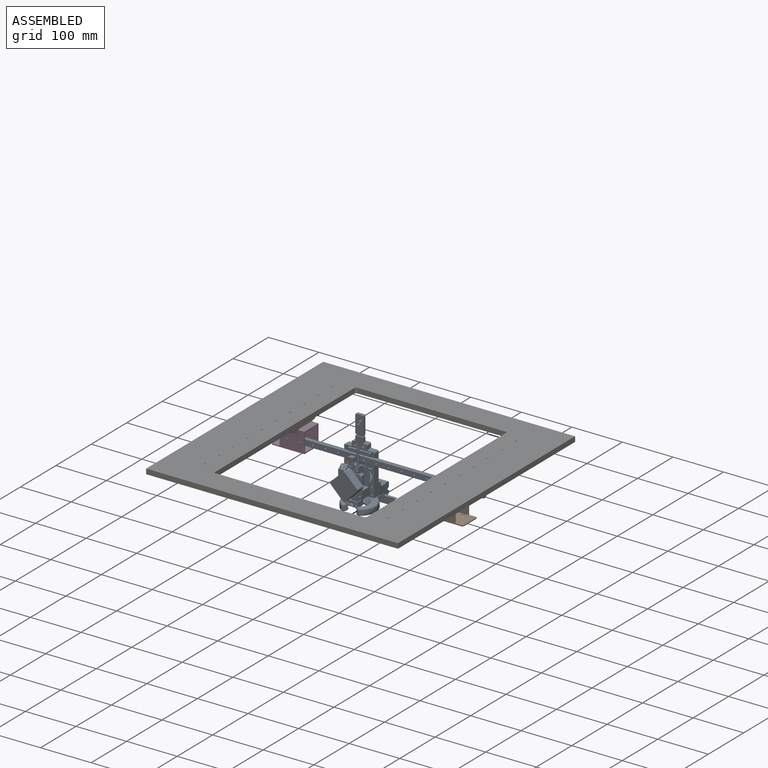
[diagram: assembled view]
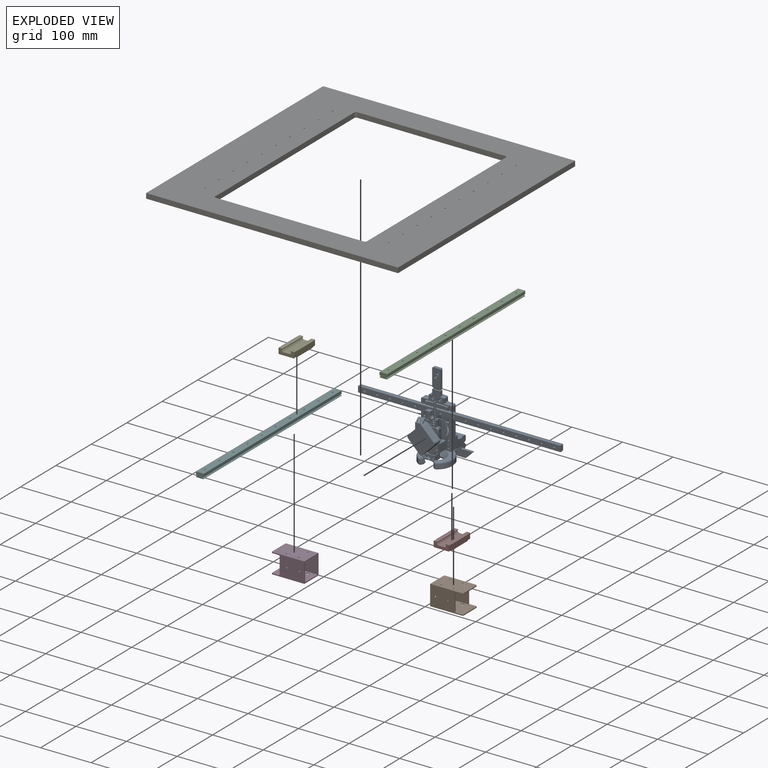
[diagram: exploded view]
GUIDED TOUR — MATED ASSEMBLY WITH SUBASSEMBLIES (Onshape document 4582f0631d4806b16300ab5d, AutoMate assembly 4582f0631d4806b16300ab5d_21cebfb99f55994230c3e05c_4cd21dc945d0d8148d6482c8_default)

This assembly has 25 component occurrences arranged in 8 top-level units: 7 individual components plus 1 subassembly (S0). The tour has two levels: first the top level, where each subassembly is treated as one rigid unit; then each subassembly is toured internally in its own section (nesting deeper than one subassembly level is flattened into its subassembly's section).

Components are labeled P0..P24 across the whole record; subassembly units are labeled S0..S0. A mate is a constraint between two units; its type names the relative motion it leaves free:
  FASTENED — locks the two components together rigidly (no relative motion),
  REVOLUTE — leaves rotation about the listed axis free (a hinge),
  SLIDER — leaves translation along the listed axis free.
Axis/direction vectors are unit vectors and 'through' points are millimeter coordinates, both in the assembly's world frame.

TOP-LEVEL MATES (between units; each subassembly's internal mates are listed in its own section)
  1. SLIDER "Slider 1": P17 <-> P15, axis (0.000, -1.000, 0.000) through (-225.67, -213.87, -5.04) mm
  2. SLIDER "Slider 2": P3 <-> P22, axis (0.000, -1.000, 0.000) through (137.33, -213.87, -5.04) mm
  3. FASTENED "Fastened 3": P15 <-> P4, direction (0.000, 0.000, -1.000) through (-238.17, 47.69, -11.54) mm
  4. FASTENED "Fastened 2": P20 <-> P3, direction (0.000, 0.000, -1.000) through (137.33, -198.87, 4.96) mm
  5. FASTENED "Fastened 5": P4 <-> S0, direction (0.000, 1.000, 0.000) through (-231.67, 42.19, -31.54) mm
  6. FASTENED "Fastened 4": P22 <-> P2, direction (0.000, 0.000, -1.000) through (149.83, -32.88, -11.54) mm
  7. FASTENED "Fastened 1": P20 <-> P17, direction (0.000, 0.000, -1.000) through (-225.67, -198.87, 4.96) mm

TOP-LEVEL ASSEMBLY ORDER
  1. P17 — the base component [order verified]
  2. P3 [order verified]
  3. S0 [order verified]
  4. P15 [order verified]
  5. P22 [order verified]
  6. P20 [order verified]
  7. P4 [order verified]
  8. P2 [order verified]
Order-tag legend:
  [order verified] — this step's position reverses a verified removal order: the component was checked to insert without passing through the ones already placed.

Of the 25 component occurrences, 1 carries the full construction recipe — the FeatureScript program that regenerates the part's solid from scratch; the rest are supplied as boundary geometry only. Each toured unit is shown spotlighted twice — assembled, then exploded with a leader line back to its socket (green = recipe-attached component, orange = geometry-only, blue = subassembly unit; the rest desaturated gray).
NOTE — document 2 of 2 of this assembly tour. The two overview renders and the header above are repeated from document 1; the component sections below continue where the previous document stopped.
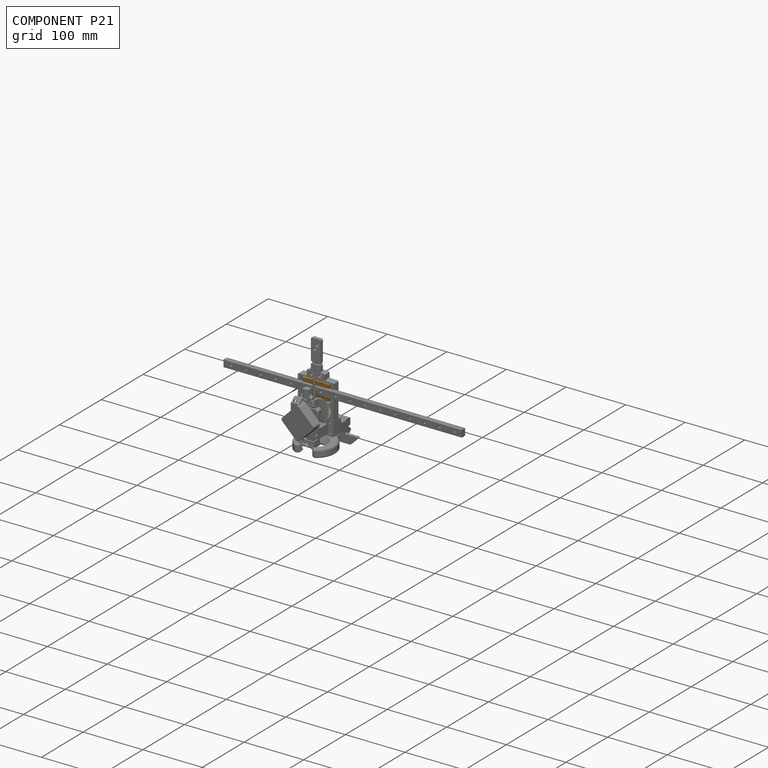
[diagram: component P21 — assembled]
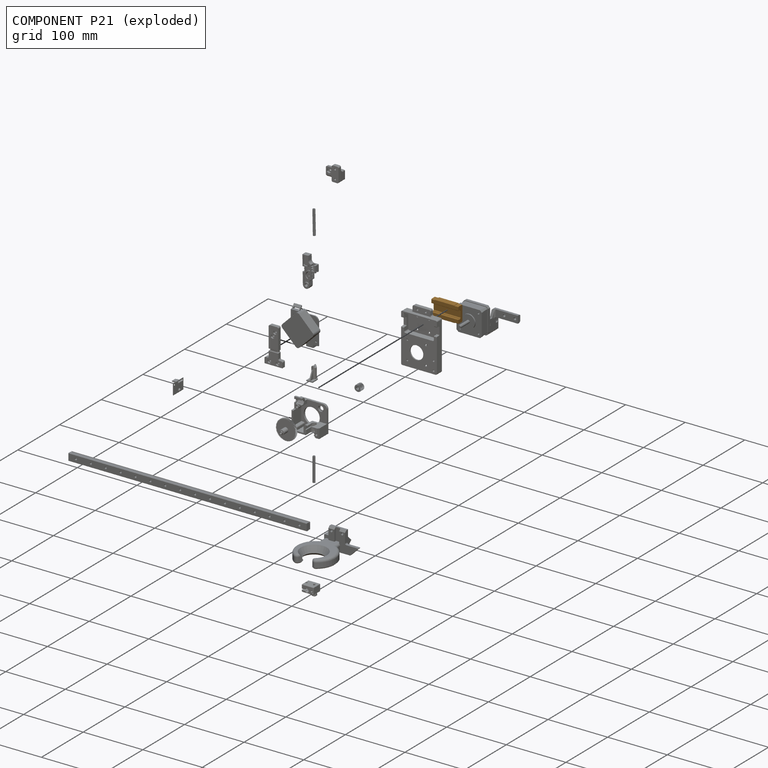
[diagram: component P21 — exploded]
COMPONENT P21 — geometry summary (no construction recipe available for this part):
  bounding box: 45.4 x 27.0 x 10.0 mm
  B-rep topology: 1 solid, 50 faces, 272 edges
  volume: 8275 mm^3 (68% of its bounding box)
  symmetry: 2-fold rotationally symmetric about the z axis; mirror-symmetric across its x mid-plane, y mid-plane
Held by: FASTENED mate "Fastened 1" to P19; SLIDER mate "Slider 1" to P8; FASTENED mate "Fastened 1" to P19; SLIDER mate "Slider 1" to P8.
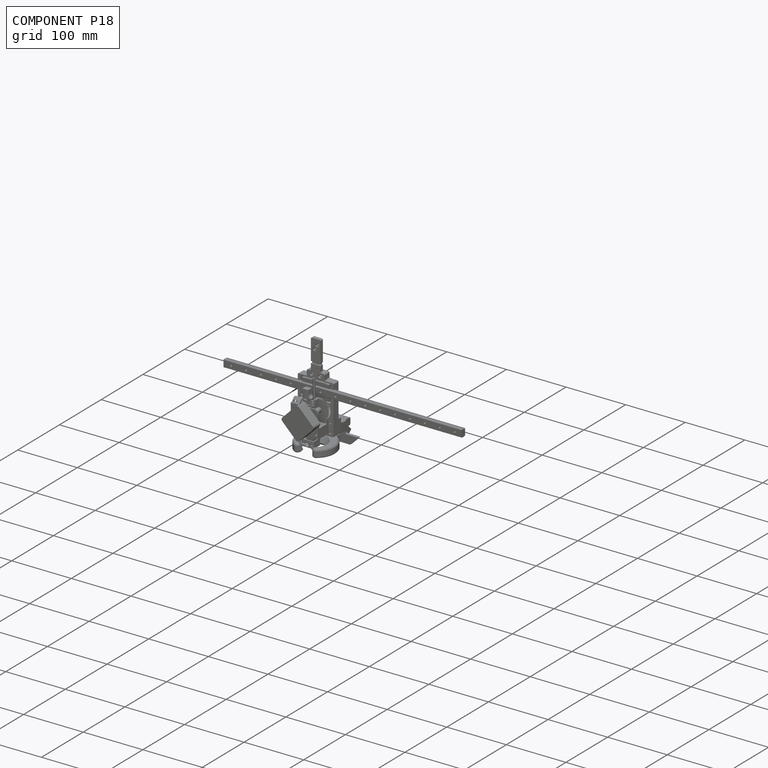
[diagram: component P18 — assembled]
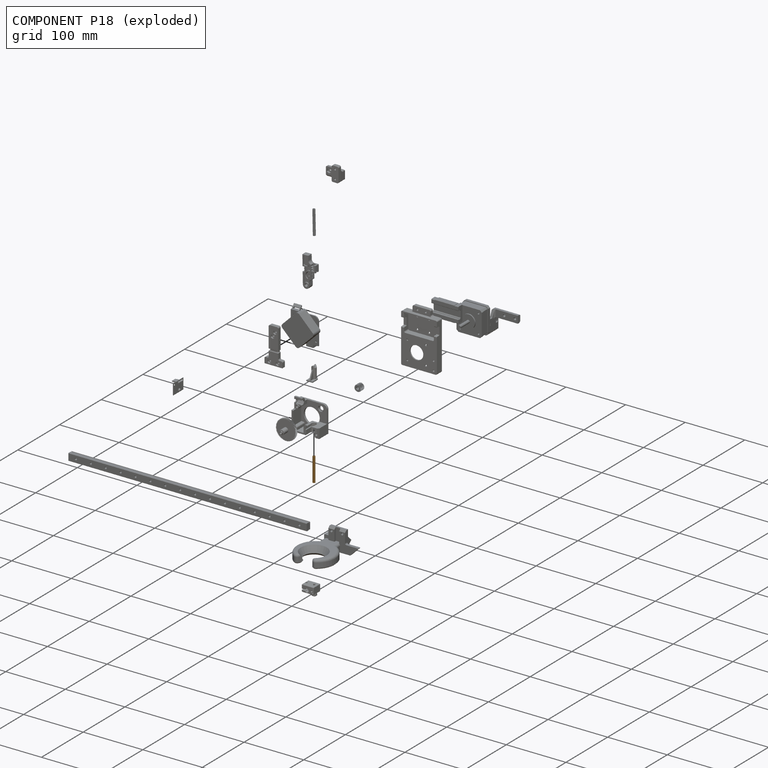
[diagram: component P18 — exploded]
COMPONENT P18 — geometry summary (no construction recipe available for this part):
  bounding box: 40.0 x 4.0 x 4.0 mm
  B-rep topology: 1 solid, 4 faces, 12 edges
  volume: 351 mm^3 (55% of its bounding box)
  symmetry: 2-fold rotationally symmetric about the x axis; 2-fold rotationally symmetric about the y axis; revolution-symmetric about the z axis through its bounding-box center; mirror-symmetric across its x mid-plane, y mid-plane, z mid-plane
Held by: FASTENED mate "Fastened 8" to P13; FASTENED mate "Fastened 8" to P13.
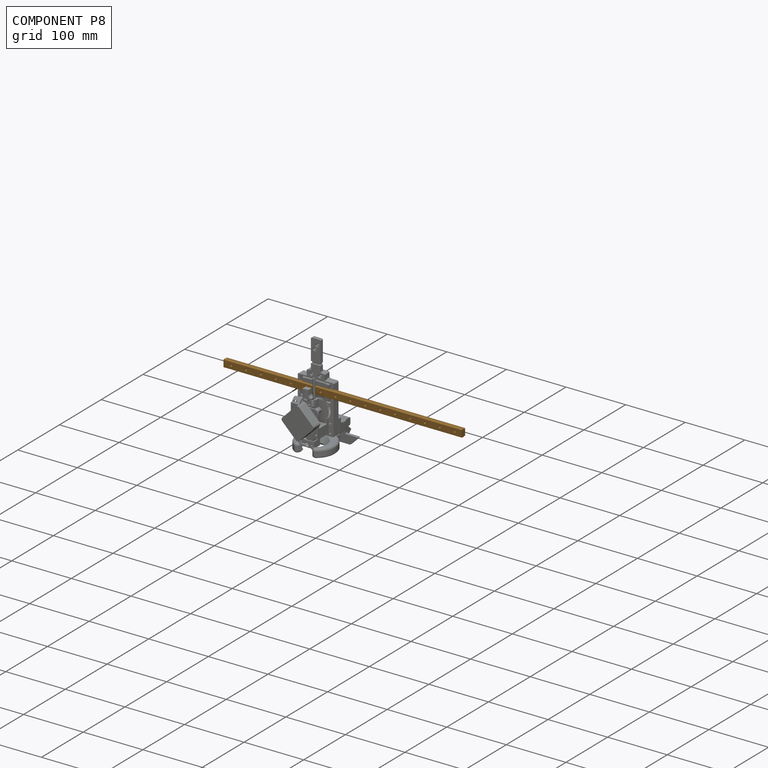
[diagram: component P8 — assembled]
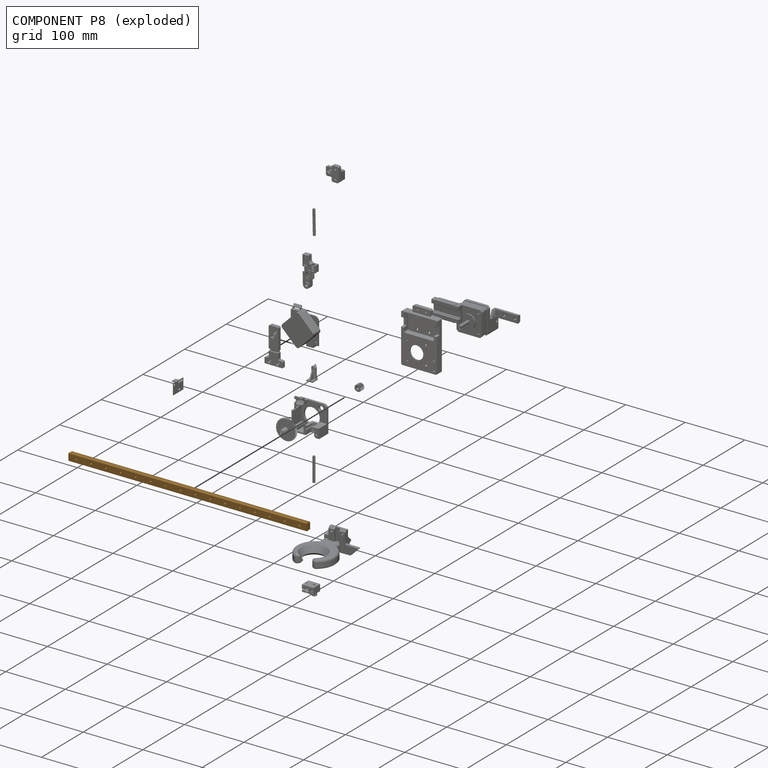
[diagram: component P8 — exploded]
COMPONENT P8 — geometry summary (no construction recipe available for this part):
  bounding box: 400.0 x 12.0 x 8.0 mm
  B-rep topology: 1 solid, 70 faces, 344 edges
  volume: 32835 mm^3 (86% of its bounding box)
  symmetry: 2-fold rotationally symmetric about the z axis; mirror-symmetric across its x mid-plane, y mid-plane
Held by: SLIDER mate "Slider 1" to P21; SLIDER mate "Slider 1" to P21.
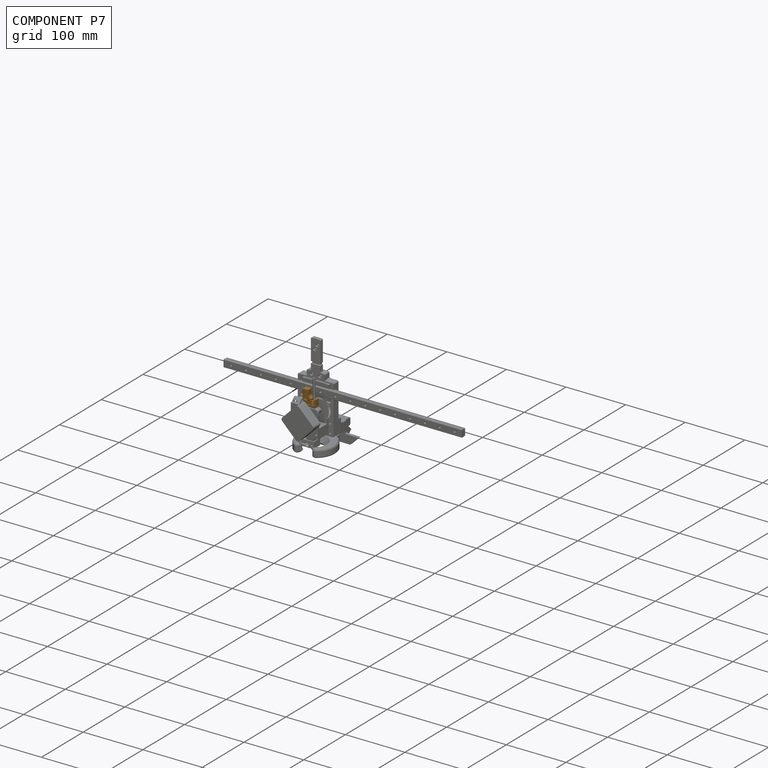
[diagram: component P7 — assembled]
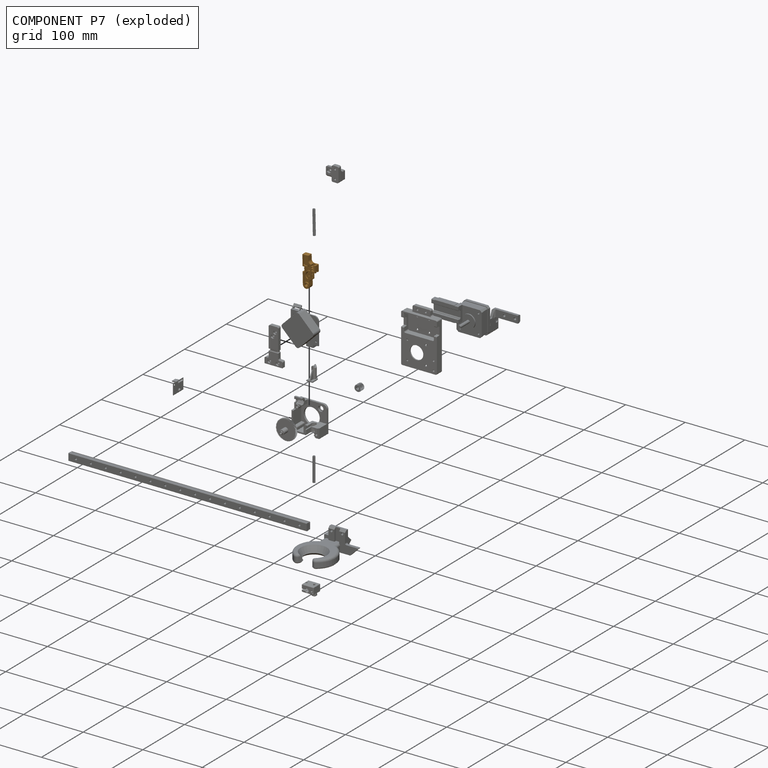
[diagram: component P7 — exploded]
COMPONENT P7 — geometry summary (no construction recipe available for this part):
  bounding box: 51.1 x 22.1 x 8.2 mm
  B-rep topology: 1 solid, 98 faces, 570 edges
  volume: 3615 mm^3 (39% of its bounding box)
Held by: FASTENED mate "Fastened 4" to P14; FASTENED mate "Fastened 5" to P12; FASTENED mate "Fastened 4" to P14; FASTENED mate "Fastened 5" to P12.
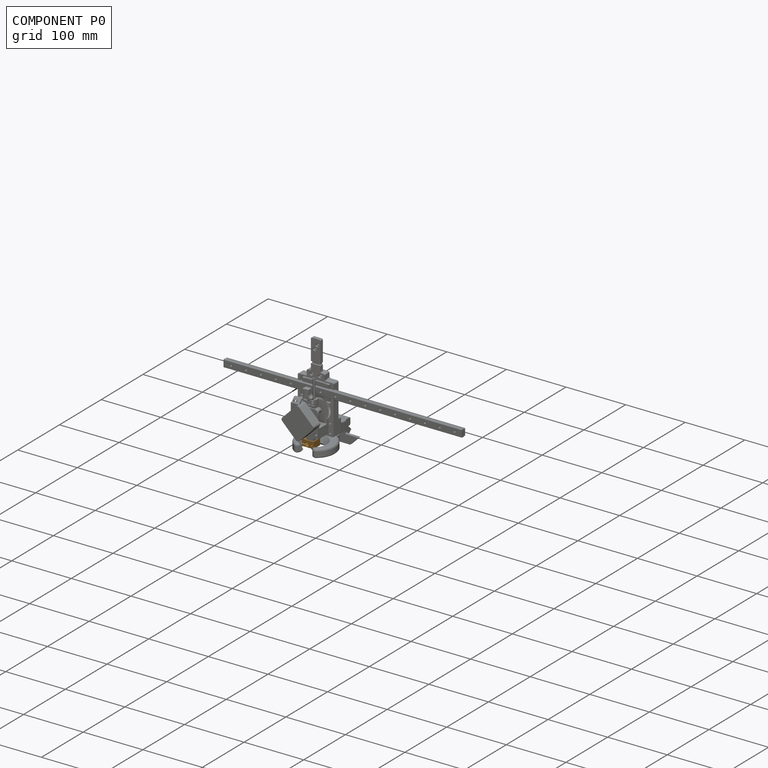
[diagram: component P0 — assembled]
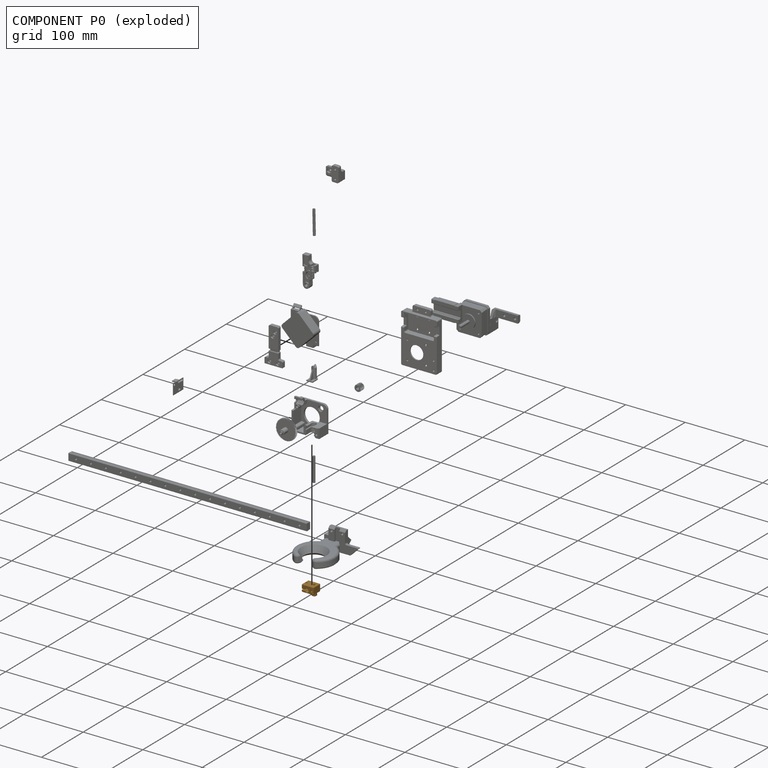
[diagram: component P0 — exploded]
COMPONENT P0 — geometry summary (no construction recipe available for this part):
  bounding box: 20.0 x 19.6 x 16.0 mm
  B-rep topology: 1 solid, 55 faces, 222 edges
  volume: 3088 mm^3 (49% of its bounding box)
Held by: REVOLUTE mate "Revolute 1" to P10; REVOLUTE mate "Revolute 1" to P10.
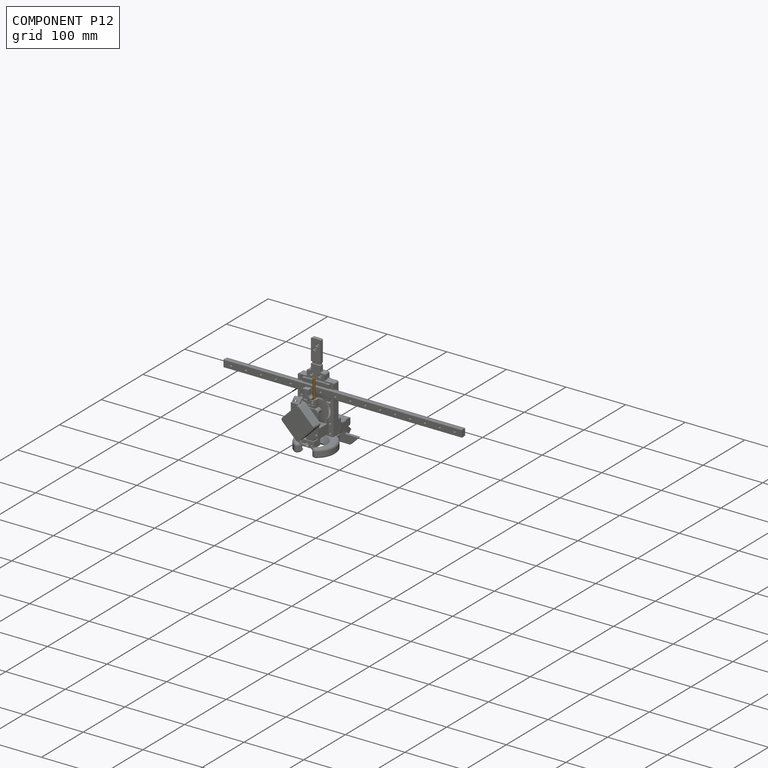
[diagram: component P12 — assembled]
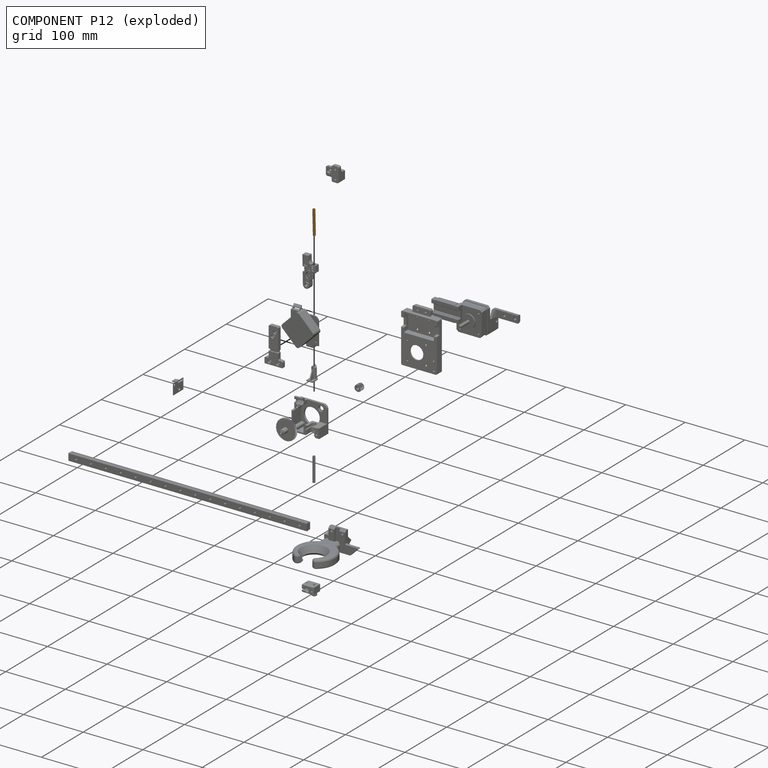
[diagram: component P12 — exploded]
COMPONENT P12 — geometry summary (no construction recipe available for this part):
  bounding box: 40.1 x 4.7 x 4.0 mm
  B-rep topology: 1 solid, 4 faces, 12 edges
  volume: 351 mm^3 (46% of its bounding box)
  symmetry: 2-fold rotationally symmetric about the y axis; mirror-symmetric across its y mid-plane
Held by: FASTENED mate "Fastened 5" to P7; FASTENED mate "Fastened 5" to P7.
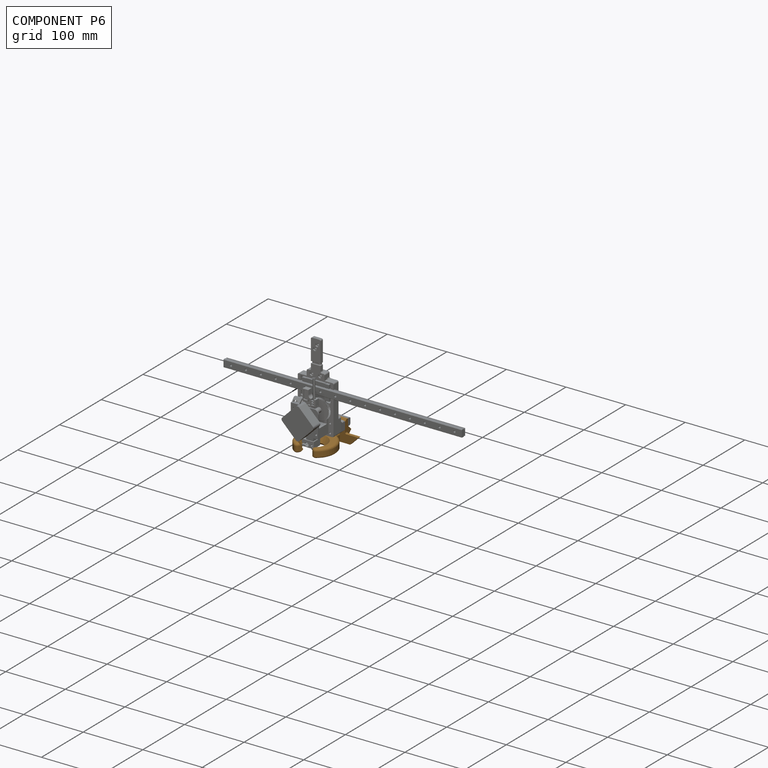
[diagram: component P6 — assembled]
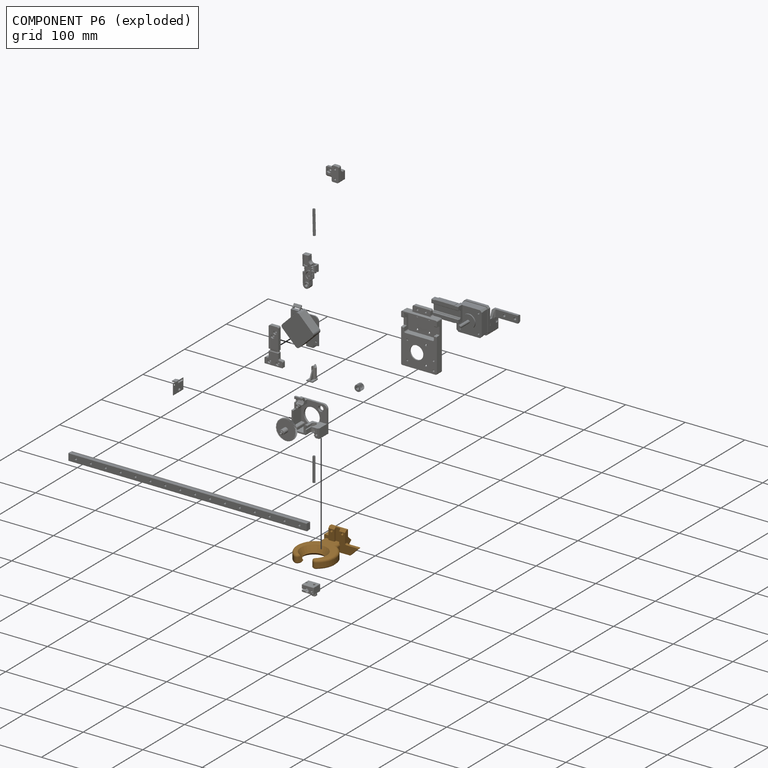
[diagram: component P6 — exploded]
COMPONENT P6 — geometry summary (no construction recipe available for this part):
  bounding box: 92.7 x 80.7 x 35.0 mm
  B-rep topology: 1 solid, 52 faces, 280 edges
  volume: 45562 mm^3 (17% of its bounding box)
Held by: FASTENED mate "Fastened 13" to P16; FASTENED mate "Fastened 14" to P24; FASTENED mate "Fastened 14" to P24; FASTENED mate "Fastened 13" to P16.
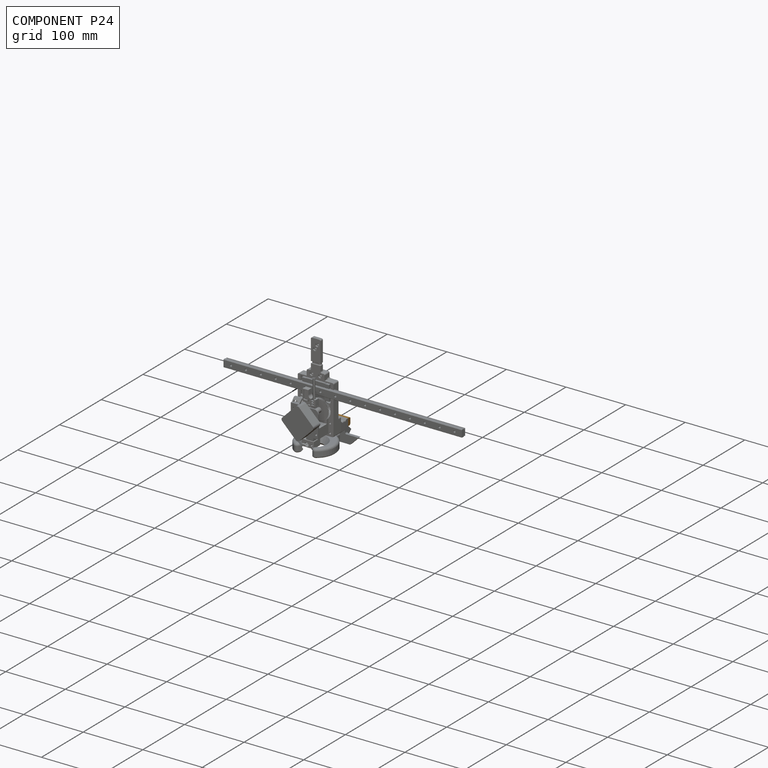
[diagram: component P24 — assembled]
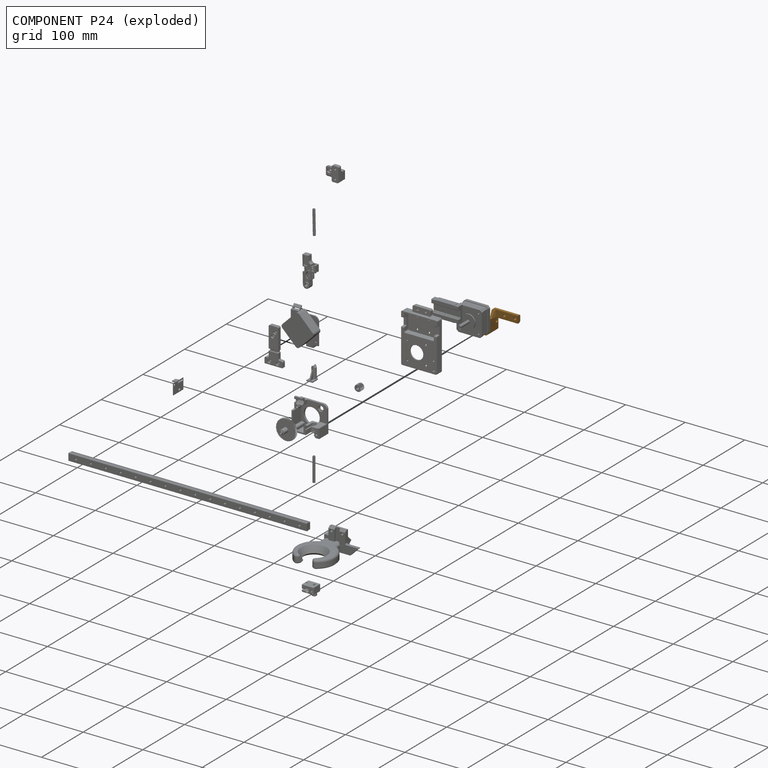
[diagram: component P24 — exploded]
COMPONENT P24 — geometry summary (no construction recipe available for this part):
  bounding box: 45.5 x 35.0 x 26.4 mm
  B-rep topology: 1 solid, 134 faces, 654 edges
  volume: 5334 mm^3 (13% of its bounding box)
Held by: FASTENED mate "Fastened 15" to P9; FASTENED mate "Fastened 14" to P6; FASTENED mate "Fastened 14" to P6; FASTENED mate "Fastened 15" to P9.
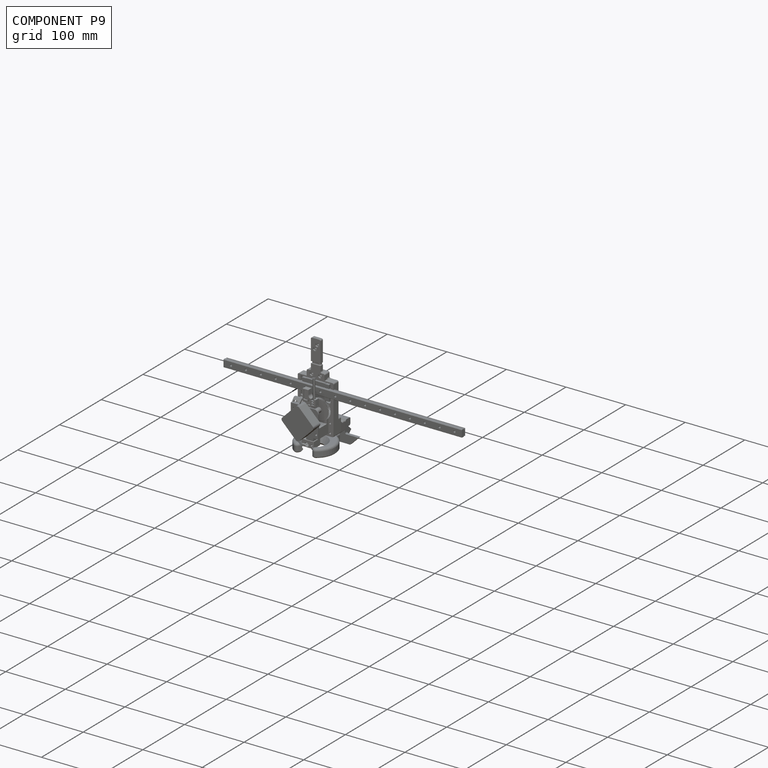
[diagram: component P9 — assembled]
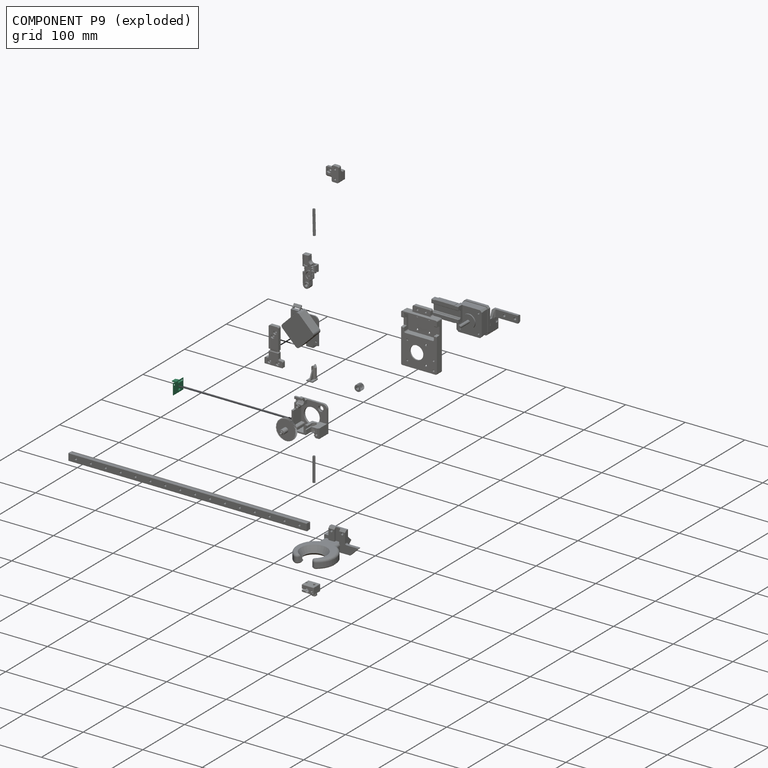
[diagram: component P9 — exploded]
COMPONENT P9 — recipe-attached (CADFS 00556129, mesh-verified: the recipe's output STEP matches this component's geometry to below the mesh-comparison resolution (tessellation chordal tolerance ~0.0484 mm)).
Held by: FASTENED mate "Fastened 15" to P24; FASTENED mate "Fastened 15" to P24.
Construction recipe (FeatureScript — the CAD program that rebuilds this solid; sketch coordinates are in the units given by the * unit suffixes, e.g. mm):

FeatureScript 1511;
import(path : "onshape/std/geometry.fs", version : "1511.0");
import(path : "onshape/std/common.fs", version : "1511.0");
const mm = millimeter;
const VERTEX = EntityType.VERTEX;
const EDGE = EntityType.EDGE;
const FACE = EntityType.FACE;
const BODY = EntityType.BODY;
function v(x, y){return vector(x, y);}
function OD(order){return orderDisambiguation(order);}
function OSD(set){return originalSetDisambiguation(set);}
function TD(topology){return topologyDisambiguation(topology);}
function TDD(query){return trueDependencyDisambiguation(query);}
function sQuery(a, b, c) {return sketchEntityQuery(a, b, c);}

annotation { "Feature Type Name" : "Feature", "Feature Type Description" : "" }
export const myFeature = defineFeature(function(context is Context, id is Id, definition is map)
    precondition{}
    {
        {
            var Q0;
            Q0=qCreatedBy(makeId("Front.planeOp"),FACE);
            var sketch = newSketch(context, id + "F0", { "sketchPlane" : qUnion([Q0])});
            skLineSegment(sketch, "E0.bottom", {"start": v(12, 9) * mm, "end": v(-12, 9) * mm});
            skLineSegment(sketch, "E0.top", {"start": v(12, -9) * mm, "end": v(-12, -9) * mm});
            skLineSegment(sketch, "E0.left", {"start": v(12, 9) * mm, "end": v(12, -9) * mm});
            skLineSegment(sketch, "E0.right", {"start": v(-12, 9) * mm, "end": v(-12, -9) * mm});
            skPoint(sketch, "E0.middle", {"position": v(0, 0) * mm});
            skLineSegment(sketch, "E1", {"start": v(-12, 6) * mm, "end": v(12, 6) * mm, "construction": true});
            skPoint(sketch, "E2", {"position": v(-9.3, 6) * mm});
            skPoint(sketch, "E3", {"position": v(9.1, 6) * mm});
            skLineSegment(sketch, "E4.bottom", {"start": v(1.5, 7.5) * mm, "end": v(-6.5, 7.5) * mm});
            skLineSegment(sketch, "E4.top", {"start": v(1.5, 4.5) * mm, "end": v(-6.5, 4.5) * mm});
            skLineSegment(sketch, "E4.left", {"start": v(1.5, 7.5) * mm, "end": v(1.5, 4.5) * mm});
            skLineSegment(sketch, "E4.right", {"start": v(-6.5, 7.5) * mm, "end": v(-6.5, 4.5) * mm});
            skPoint(sketch, "E4.middle", {"position": v(-2.5, 6) * mm});
            skCircle(sketch, "E5", {"center": v(-2, -6) * mm, "radius": 2.5 * mm});
            skSolve(sketch);
        }
        {
            var Q0;
            Q0=makeQuery(id+"F0.imprint","IMPRINT",FACE,{"disambiguationData":[TD([[makeQuery(id+"F0.imprint","IMPRINT",EDGE,{"derivedFrom":sQuery(id+"F0.wireOp",EDGE,"E0.bottom")}),1.0]])]});
            var Q1;
            Q1=makeQuery(id+"F0.imprint","IMPRINT",FACE,{"disambiguationData":[TD([[makeQuery(id+"F0.imprint","IMPRINT",EDGE,{"derivedFrom":sQuery(id+"F0.wireOp",EDGE,"E4.bottom")}),1.0]])]});
            var Q2;
            Q2=makeQuery(id+"F0.imprint","IMPRINT",FACE,{"disambiguationData":[TD([[makeQuery(id+"F0.imprint","IMPRINT",EDGE,{"derivedFrom":sQuery(id+"F0.wireOp",EDGE,"E5")}),1.0]])]});
            extrude(context, id + "F1", {"entities" : qUnion([Q0, Q1, Q2]), "depth" : 0.8 * mm, "offsetDistance" : 25 * mm});
        }
        {
            var Q0;
            Q0=sQuery(id+"F0.wireOp",VERTEX,"E2");
            var Q1;
            Q1=sQuery(id+"F0.wireOp",VERTEX,"E3");
            var Q2;
            Q2=makeQuery(id+"F1.opExtrude","SWEPT_BODY",BODY,{"disambiguationData":[OSD([sQuery(id+"F0.wireOp",EDGE,"E0.bottom"),sQuery(id+"F0.wireOp",EDGE,"E0.top"),sQuery(id+"F0.wireOp",EDGE,"E0.left"),sQuery(id+"F0.wireOp",EDGE,"E0.right")])]});
            hole(context, id + "F2", {"style" : HoleStyle.SIMPLE, "endStyle" : HoleEndStyle.THROUGH, "oppositeDirection" : true, "holeDiameter" : 2.8 * mm, "majorDiameter" : 5 * mm, "isTappedThrough" : true, "tappedDepth" : 12 * mm, "tapClearance" : 3, "locations" : qUnion([Q0, Q1]), "scope" : qUnion([Q2])});
        }
        {
            var Q0;
            Q0=makeQuery(id+"F0.imprint","IMPRINT",FACE,{"disambiguationData":[TD([[makeQuery(id+"F0.imprint","IMPRINT",EDGE,{"derivedFrom":sQuery(id+"F0.wireOp",EDGE,"E4.bottom")}),1.0]])]});
            var Q1;
            Q1=makeQuery(id+"F0.imprint","IMPRINT",FACE,{"disambiguationData":[TD([[makeQuery(id+"F0.imprint","IMPRINT",EDGE,{"derivedFrom":sQuery(id+"F0.wireOp",EDGE,"E5")}),1.0]])]});
            extrude(context, id + "F3", {"entities" : qUnion([Q0, Q1]), "operationType" : NewBodyOperationType.ADD, "oppositeDirection" : true, "depth" : 2 * mm, "offsetDistance" : 25 * mm});
        }
        {
            var Q0;
            Q0=makeQuery(id+"F3.opExtrude","CAP_EDGE",EDGE,{"disambiguationData":[OSD([sQuery(id+"F0.wireOp",EDGE,"E4.top")])],"isStart":false});
            var Q1;
            Q1=makeQuery(id+"F3.opExtrude","CAP_EDGE",EDGE,{"disambiguationData":[OSD([sQuery(id+"F0.wireOp",EDGE,"E4.bottom")])],"isStart":false});
            chamfer(context, id + "F4", {"entities" : qUnion([Q0, Q1]), "chamferType" : ChamferType.TWO_OFFSETS, "width1" : 1 * mm, "oppositeDirection" : false, "width2" : 2 * mm, "tangentPropagation" : true});
        }
        {
            var Q0;
            Q0=makeQuery(id+"F3.opExtrude","CAP_EDGE",EDGE,{"disambiguationData":[OSD([sQuery(id+"F0.wireOp",EDGE,"E5")])],"isStart":false});
            chamfer(context, id + "F5", {"entities" : qUnion([Q0]), "chamferType" : ChamferType.TWO_OFFSETS, "width1" : 2 * mm, "oppositeDirection" : false, "width2" : 1 * mm, "tangentPropagation" : true});
        }
        {
            var Q0;
            Q0=makeQuery(id+"F0.imprint","IMPRINT",FACE,{"disambiguationData":[TD([[makeQuery(id+"F0.imprint","IMPRINT",EDGE,{"derivedFrom":sQuery(id+"F0.wireOp",EDGE,"E5")}),1.0]])]});
            extrude(context, id + "F6", {"entities" : qUnion([Q0]), "operationType" : NewBodyOperationType.ADD, "depth" : (6 + 0.8) * mm, "offsetDistance" : 25 * mm});
        }
        {
            var Q0;
            Q0=makeQuery(id+"F0.imprint","IMPRINT",FACE,{"disambiguationData":[TD([[makeQuery(id+"F0.imprint","IMPRINT",EDGE,{"derivedFrom":sQuery(id+"F0.wireOp",EDGE,"E4.bottom")}),1.0]])]});
            extrude(context, id + "F7", {"entities" : qUnion([Q0]), "operationType" : NewBodyOperationType.ADD, "depth" : (9 + 0.8) * mm, "offsetDistance" : 25 * mm});
        }
        {
            var Q0;
            Q0=makeQuery(id+"F7.opExtrude","CAP_EDGE",EDGE,{"disambiguationData":[OSD([sQuery(id+"F0.wireOp",EDGE,"E4.bottom")])],"isStart":false});
            var Q1;
            Q1=makeQuery(id+"F7.opExtrude","CAP_EDGE",EDGE,{"disambiguationData":[OSD([sQuery(id+"F0.wireOp",EDGE,"E4.top")])],"isStart":false});
            chamfer(context, id + "F8", {"entities" : qUnion([Q0, Q1]), "chamferType" : ChamferType.TWO_OFFSETS, "width1" : 1 * mm, "oppositeDirection" : false, "width2" : 9 * mm, "tangentPropagation" : true});
        }
    });
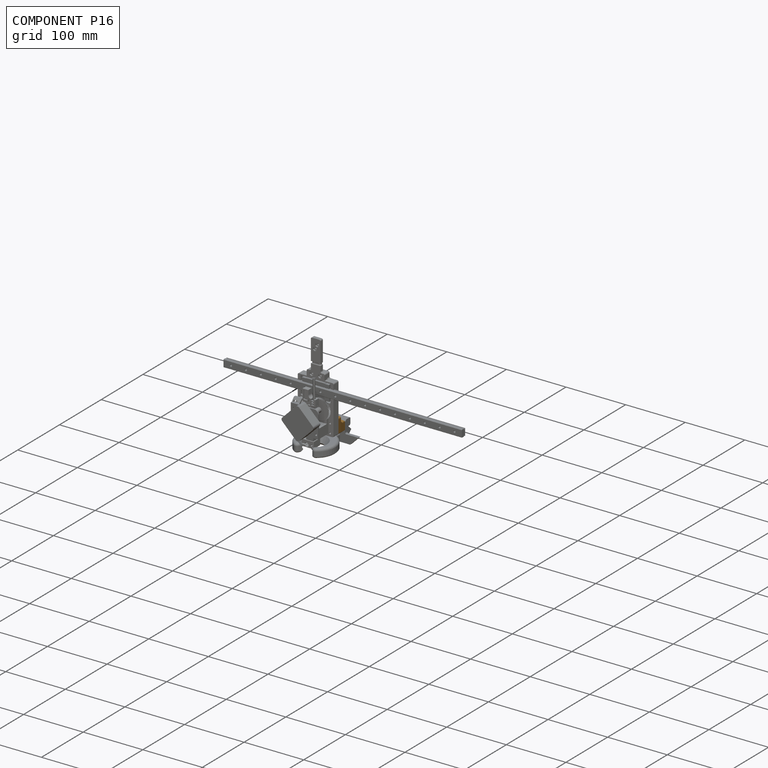
[diagram: component P16 — assembled]
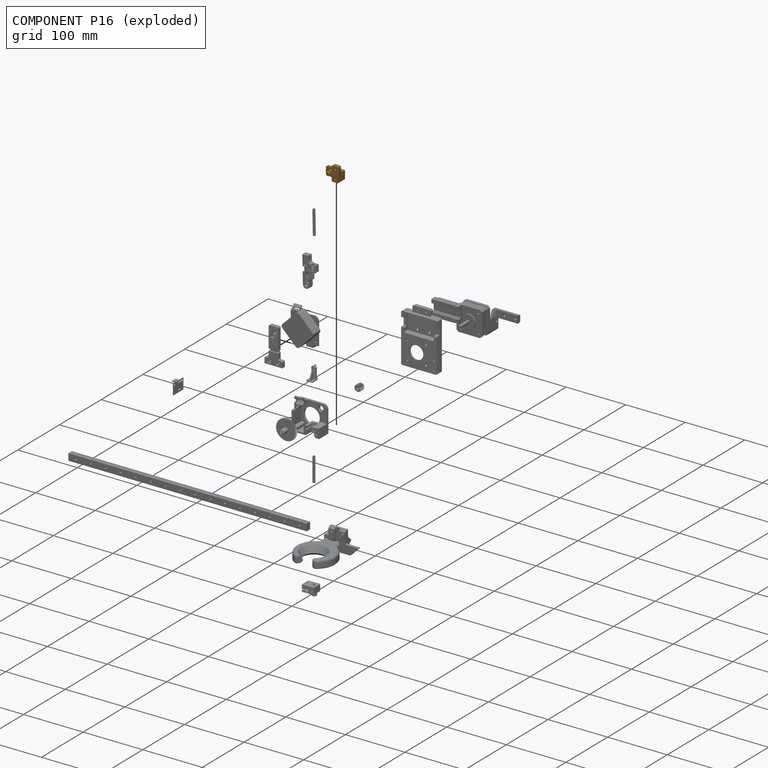
[diagram: component P16 — exploded]
COMPONENT P16 — geometry summary (no construction recipe available for this part):
  bounding box: 28.5 x 25.2 x 16.5 mm
  B-rep topology: 1 solid, 66 faces, 356 edges
  volume: 3913 mm^3 (33% of its bounding box)
Held by: FASTENED mate "Fastened 12" to P19; FASTENED mate "Fastened 13" to P6; FASTENED mate "Fastened 12" to P19; FASTENED mate "Fastened 13" to P6.
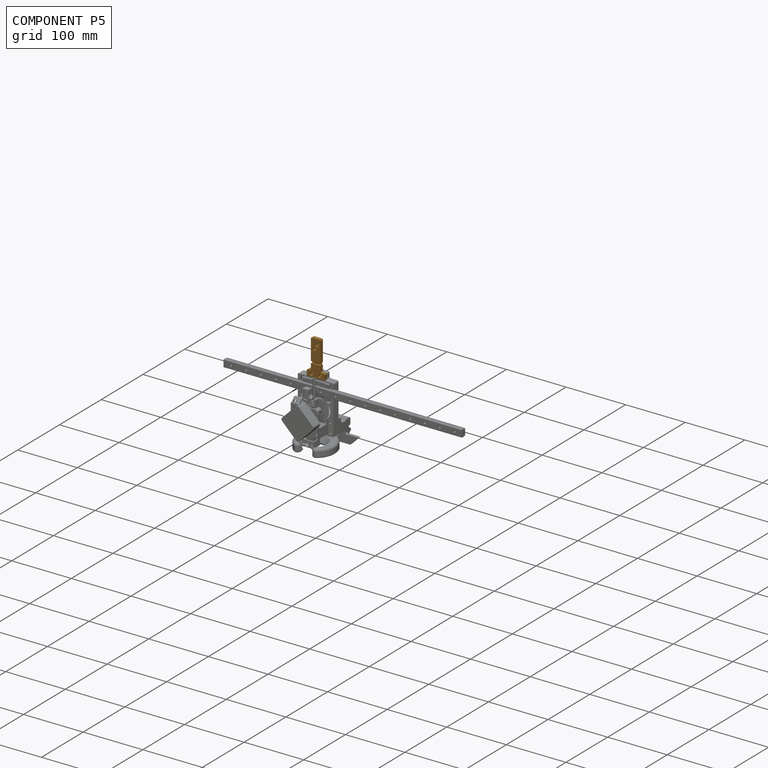
[diagram: component P5 — assembled]
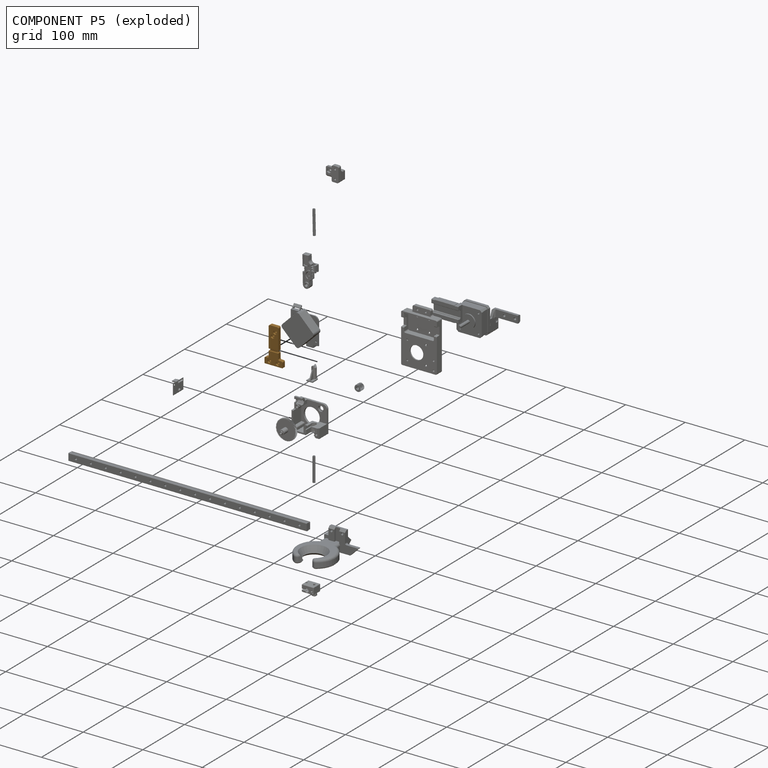
[diagram: component P5 — exploded]
COMPONENT P5 — geometry summary (no construction recipe available for this part):
  bounding box: 60.0 x 30.0 x 6.1 mm
  B-rep topology: 1 solid, 86 faces, 416 edges
  volume: 6090 mm^3 (56% of its bounding box)
Held by: FASTENED mate "Fastened 11" to P19; FASTENED mate "Fastened 11" to P19.
PROVENANCE & LICENSES
Assembly (occurrences, transforms, mates, per-part STEP geometry): AutoMate dataset, Zenodo record 7776208, CC0.
Construction recipes: CADFS (HuggingFace VladPyatov/CADFS, CC-BY-4.0, layered over the ABC dataset), FeatureScript reconstruction programs keyed by ABC model id.
Join: ABC meta listings map ABC model id -> Onshape documentId; within a shared document, parts are matched by geometric signature (bounding-box dims + volume at 0.1% relative tolerance, exact B-rep face/solid counts).
Verification: 1 of this assembly's 25 components carries a recipe attachment, and every attachment is mesh-verified: the CADFS STEP and the AutoMate member STEP were compared as meshes in their shared local frame (symmetric sampled-point-to-mesh distance); worst across the 1 attachment: below the mesh-comparison resolution (tessellation chordal tolerance ~0.0484 mm) on a 32 mm part.
Renders: orthographic iso camera (az 35 / el 25); the floor grid conveys scale (grid pitch printed in each image; no ruler). In the exploded view each component is displaced by its stored offset vector: the offsets alone carry the explosion direction (mate normal/axis signs are not orientation cues and do not encode it), and separation distances are assigned per mate-chain, not proportionally to assembly-order depth.
